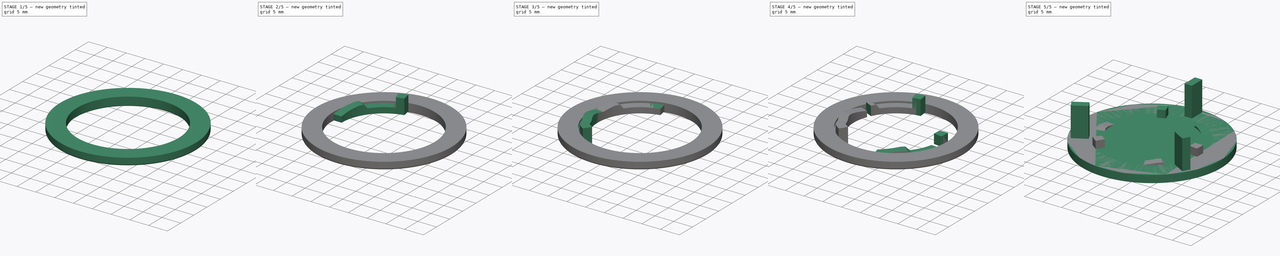
[diagram: build sequence overview — one tinted view per stage of 5, left to right]
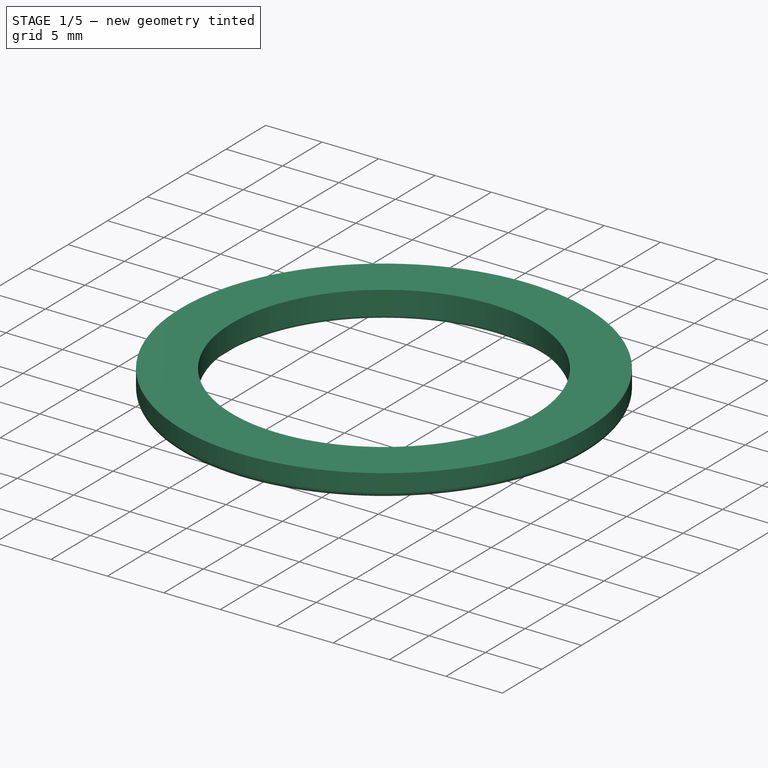
[diagram: stage 1 of 5 — iso view after this stage's code; geometry added in this stage tinted green]
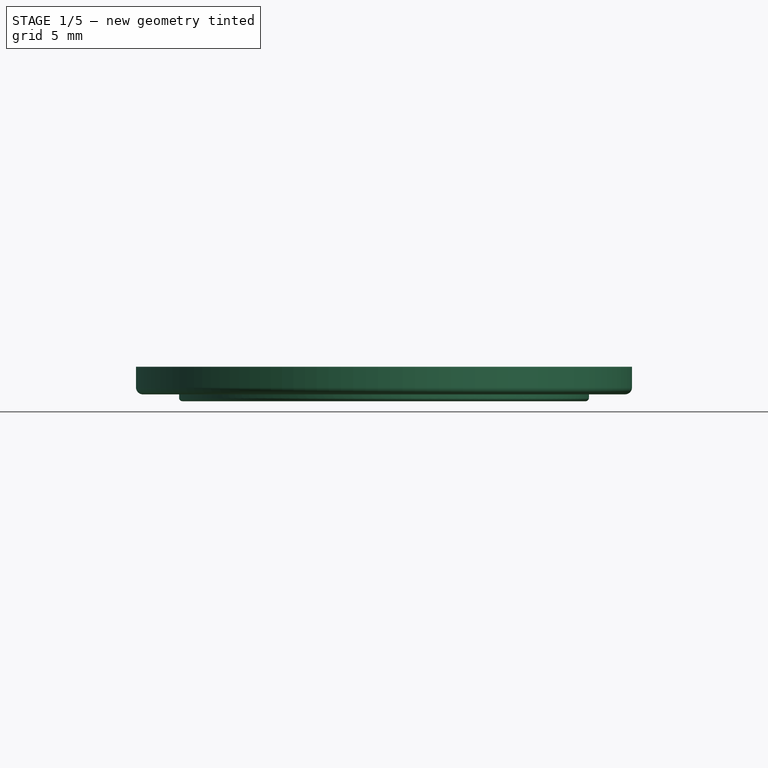
[diagram: stage 1 of 5 — front view after this stage's code; geometry added in this stage tinted green]
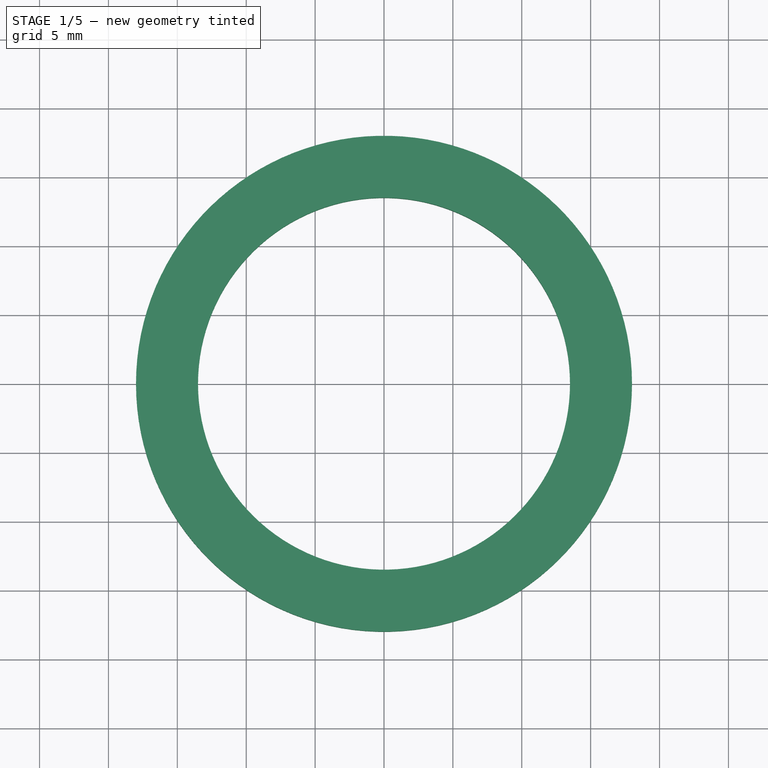
[diagram: stage 1 of 5 — top view after this stage's code; geometry added in this stage tinted green]
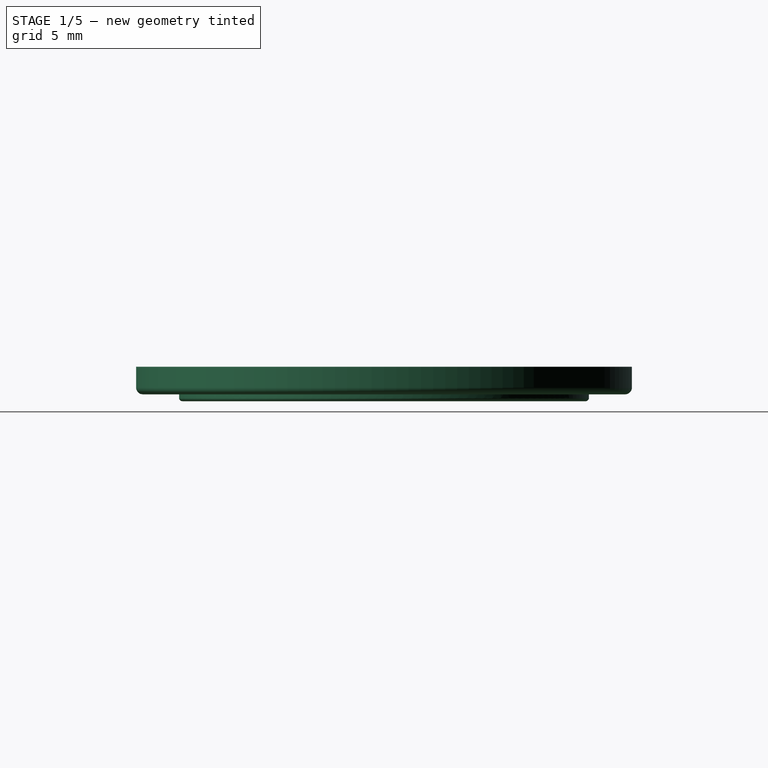
[diagram: stage 1 of 5 — right view after this stage's code; geometry added in this stage tinted green]
FCSTD DOCUMENT  (FreeCAD 0.18R4 (GitTag))
Label: BayonetBaseFemaleV6
License: All rights reserved
LicenseURL: http://en.wikipedia.org/wiki/All_rights_reserved
objects: Sketcher::SketchObject×40, Part::Sweep×16, Part::MultiFuse×6, Part::Cylinder×3, Part::Mirroring×3, Part::Fillet×3, PartDesign::Body×1, Part::Cut×1, Part::Box×1, Part::FeaturePython×1
note: 75 computed .brp shape members not serialized (recipe doc carries the construction recipe); baked Part::Feature solids carry a one-line shape summary decoded from their .brp

FEATURE [Part::Cylinder] Cylinder001
  Angle = 360
  AttacherType = Attacher::AttachEngine3D
  Height = 2
  Radius = 18
FEATURE [Part::Cylinder] Cylinder002
  Angle = 360
  AttacherType = Attacher::AttachEngine3D
  Height = 2
  Radius = 13.5
FEATURE [Part::Cut] Cut  label="Base"
  Base = -> Cylinder001
  Placement = pos=(0,0,2) rot=(1,0,0;3.14159rad)
  Tool = -> Cylinder002
FEATURE [Sketcher::SketchObject] Sketch015  label="GrooveProfile"
  Placement = pos=(0,0,0) rot=(1,0,0;1.5708rad)
  sketch-geometry (4):
    g0: LineSegment StartX=-14.875 StartY=-0.5 StartZ=0 EndX=-13.875 EndY=-0.5 EndZ=0
    g1: LineSegment StartX=-13.875 StartY=-0.5 StartZ=0 EndX=-13.875 EndY=0.5 EndZ=0
    g2: LineSegment StartX=-13.875 StartY=0.5 StartZ=0 EndX=-14.875 EndY=0.5 EndZ=0
    g3: LineSegment StartX=-14.875 StartY=0.5 StartZ=0 EndX=-14.875 EndY=-0.5 EndZ=0
  constraints (12):
    c: Coincident(g0,g1)
    c: Coincident(g1,g2)
    c: Coincident(g2,g3)
    c: Coincident(g3,g0)
    c: Horizontal(g0)
    c: Horizontal(g2)
    c: Vertical(g1)
    c: Vertical(g3)
    c: DistanceX(g0,g0) = 1
    c: Equal(g0,g1)
    c: DistanceY(g1,g-1) = -0.5
    c: DistanceX(g1,g-1) = 13.875
FEATURE [Sketcher::SketchObject] Sketch016  label="GroovePath"
  sketch-geometry (1):
    g0: Circle CenterX=0 CenterY=0 CenterZ=0 NormalX=0 NormalY=0 NormalZ=1 AngleXU=0 Radius=13.875
  constraints (2):
    c: Coincident(g0,g-1)
    c: Radius(g0) = 13.875
FEATURE [Part::Sweep] Sweep005  label="Groove"
  Frenet = false
  Sections = -> [Sketch015]
  Solid = true
  Spine = -> Sketch016 [Edge1]
  Transition = 1
FEATURE [Part::Fillet] Fillet
  Base = -> Cut
  Edges = 1 edges r=0.5: [Edge1]
FEATURE [Part::Fillet] Fillet001
  Base = -> Sweep005
  Edges = 1 edges r=0.25: [Edge1]
FEATURE [Part::Fillet] Fillet002
  Base = -> Fillet001
  Edges = 1 edges r=0.25: [Edge3]
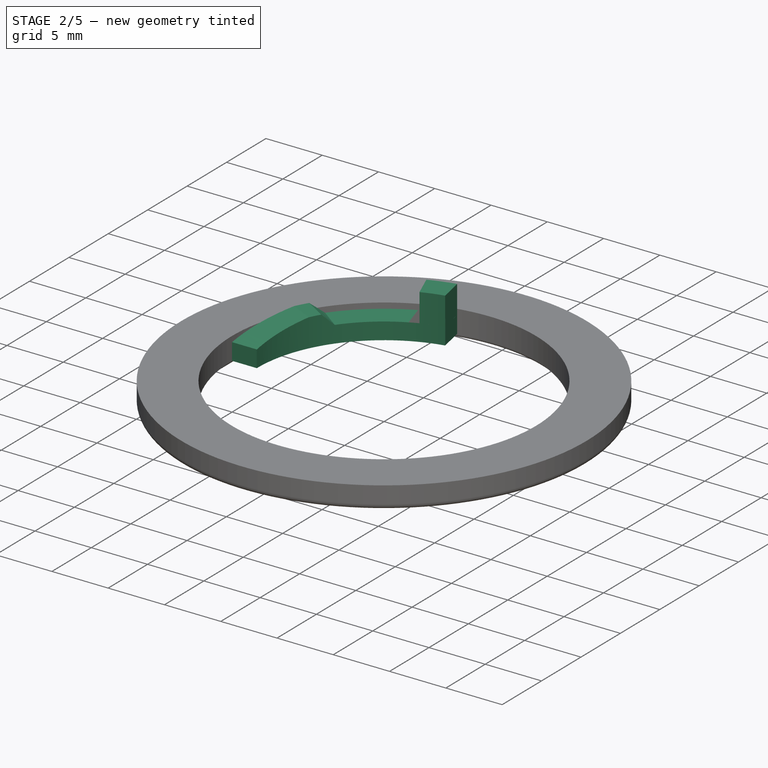
[diagram: stage 2 of 5 — iso view after this stage's code; geometry added in this stage tinted green]
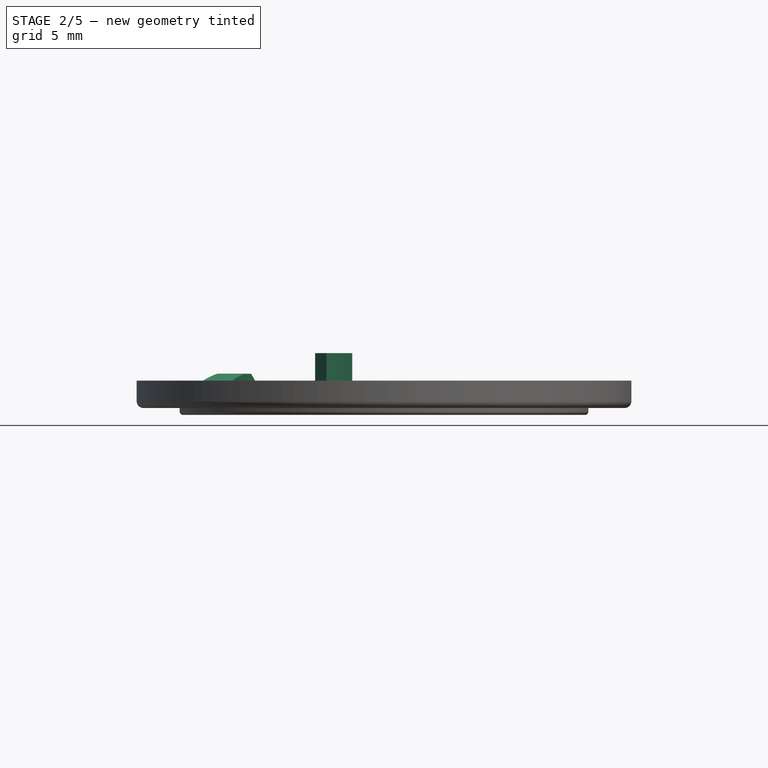
[diagram: stage 2 of 5 — front view after this stage's code; geometry added in this stage tinted green]
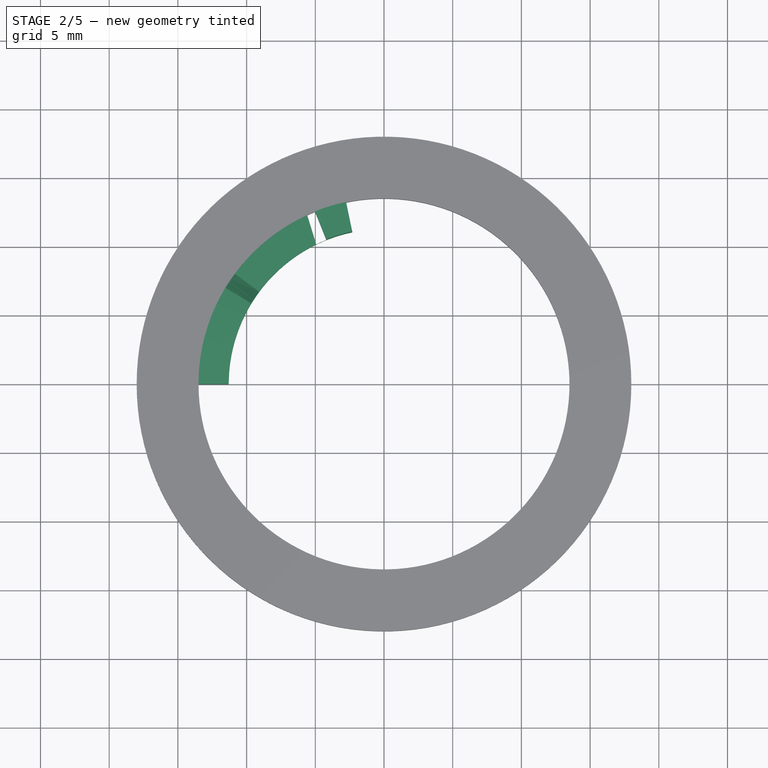
[diagram: stage 2 of 5 — top view after this stage's code; geometry added in this stage tinted green]
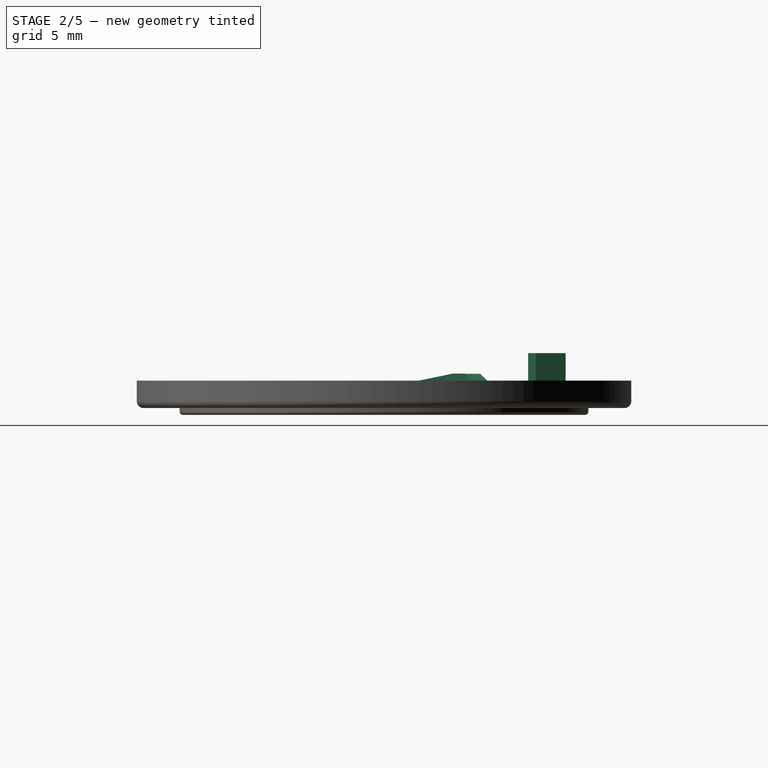
[diagram: stage 2 of 5 — right view after this stage's code; geometry added in this stage tinted green]
FEATURE [Sketcher::SketchObject] Sketch029  label="RampStart002"
  Placement = pos=(0,0,0) rot=(1,0,0;1.5708rad)
  sketch-geometry (4):
    g0: LineSegment StartX=-13.5 StartY=0 StartZ=0 EndX=-13.5 EndY=1.5 EndZ=0
    g1: LineSegment StartX=-13.5 StartY=1.5 StartZ=0 EndX=-11.3 EndY=1.5 EndZ=0
    g2: LineSegment StartX=-11.3 StartY=1.5 StartZ=0 EndX=-11.3 EndY=0 EndZ=0
    g3: LineSegment StartX=-11.3 StartY=0 StartZ=0 EndX=-13.5 EndY=0 EndZ=0
  constraints (12):
    c: Coincident(g0,g1)
    c: Coincident(g1,g2)
    c: Coincident(g2,g3)
    c: Coincident(g3,g0)
    c: Parallel(g0,g2)
    c: Parallel(g1,g3)
    c: Horizontal(g3)
    c: Vertical(g2)
    c: DistanceY(g-1,g2) = 0
    c: DistanceX(g2,g-1) = 11.3
    c: DistanceX(g0,g-1) = 13.5
    c: DistanceY(g0,g0) = 1.5
FEATURE [Sketcher::SketchObject] Sketch030  label="RampEnd002"
  Placement = pos=(0,0,0) rot=(0.950615,-0.219467,-0.219467;1.62142rad)
  sketch-geometry (4):
    g0: LineSegment StartX=-13.5 StartY=0 StartZ=0 EndX=-13.5 EndY=2.5 EndZ=0
    g1: LineSegment StartX=-13.5 StartY=2.5 StartZ=0 EndX=-11.3 EndY=2.5 EndZ=0
    g2: LineSegment StartX=-11.3 StartY=2.5 StartZ=0 EndX=-11.3 EndY=0 EndZ=0
    g3: LineSegment StartX=-11.3 StartY=0 StartZ=0 EndX=-13.5 EndY=0 EndZ=0
  constraints (12):
    c: Coincident(g0,g1)
    c: Coincident(g1,g2)
    c: Coincident(g2,g3)
    c: Coincident(g3,g0)
    c: Parallel(g0,g2)
    c: Parallel(g1,g3)
    c: Horizontal(g3)
    c: Vertical(g2)
    c: DistanceY(g-1,g2) = 0
    c: DistanceX(g2,g-1) = 11.3
    c: DistanceX(g0,g-1) = 13.5
    c: DistanceY(g0,g0) = 2.5
FEATURE [Sketcher::SketchObject] Sketch031  label="LockFlatEnd002"
  Placement = pos=(0,0,0) rot=(0.656406,-0.533447,-0.533447;1.97986rad)
  sketch-geometry (4):
    g0: LineSegment StartX=-13.5 StartY=0 StartZ=0 EndX=-13.5 EndY=1.5 EndZ=0
    g1: LineSegment StartX=-13.5 StartY=1.5 StartZ=0 EndX=-11.3 EndY=1.5 EndZ=0
    g2: LineSegment StartX=-11.3 StartY=1.5 StartZ=0 EndX=-11.3 EndY=0 EndZ=0
    g3: LineSegment StartX=-11.3 StartY=0 StartZ=0 EndX=-13.5 EndY=0 EndZ=0
  constraints (12):
    c: Coincident(g0,g1)
    c: Coincident(g1,g2)
    c: Coincident(g2,g3)
    c: Coincident(g3,g0)
    c: Parallel(g0,g2)
    c: Parallel(g1,g3)
    c: Horizontal(g3)
    c: Vertical(g2)
    c: DistanceY(g-1,g2) = 0
    c: DistanceX(g2,g-1) = 11.3
    c: DistanceX(g0,g-1) = 13.5
    c: DistanceY(g0,g0) = 1.5
FEATURE [Sketcher::SketchObject] Sketch032  label="RampFlat002"
  Placement = pos=(0,0,0) rot=(0.930118,-0.259693,-0.259693;1.64318rad)
  sketch-geometry (4):
    g0: LineSegment StartX=-13.5 StartY=0 StartZ=0 EndX=-13.5 EndY=2.5 EndZ=0
    g1: LineSegment StartX=-13.5 StartY=2.5 StartZ=0 EndX=-11.3 EndY=2.5 EndZ=0
    g2: LineSegment StartX=-11.3 StartY=2.5 StartZ=0 EndX=-11.3 EndY=0 EndZ=0
    g3: LineSegment StartX=-11.3 StartY=0 StartZ=0 EndX=-13.5 EndY=0 EndZ=0
  constraints (12):
    c: Coincident(g0,g1)
    c: Coincident(g1,g2)
    c: Coincident(g2,g3)
    c: Coincident(g3,g0)
    c: Parallel(g0,g2)
    c: Parallel(g1,g3)
    c: Horizontal(g3)
    c: Vertical(g2)
    c: DistanceY(g-1,g2) = 0
    c: DistanceX(g2,g-1) = 11.3
    c: DistanceX(g0,g-1) = 13.5
    c: DistanceY(g0,g0) = 2.5
FEATURE [Sketcher::SketchObject] Sketch033  label="Path009"
  sketch-geometry (1):
    g0: ArcOfCircle CenterX=0 CenterY=0 CenterZ=0 NormalX=0 NormalY=0 NormalZ=1 AngleXU=0 Radius=11.3 StartAngle=2.50468 EndAngle=2.59704
  constraints (2):
    c: Radius(g0) = 11.3
    c: Coincident(g0,g-1)
FEATURE [Sketcher::SketchObject] Sketch034  label="Path010"
  sketch-geometry (2):
    g0: ArcOfCircle CenterX=0 CenterY=0 CenterZ=0 NormalX=0 NormalY=0 NormalZ=1 AngleXU=0 Radius=11.3 StartAngle=2.68754 EndAngle=3.14132
    g1: GeomPoint X=-10.1564 Y=4.95359 Z=0
  constraints (3):
    c: Radius(g0) = 11.3
    c: Coincident(g-1,g0)
    c: Angle(g0) = 0.453786
FEATURE [Sketcher::SketchObject] Sketch035  label="LockFlat002"
  Placement = pos=(0,0,0) rot=(0.906297,-0.298852,-0.298852;1.66903rad)
  sketch-geometry (4):
    g0: LineSegment StartX=-13.5 StartY=0 StartZ=0 EndX=-13.5 EndY=1.5 EndZ=0
    g1: LineSegment StartX=-13.5 StartY=1.5 StartZ=0 EndX=-11.3 EndY=1.5 EndZ=0
    g2: LineSegment StartX=-11.3 StartY=1.5 StartZ=0 EndX=-11.3 EndY=0 EndZ=0
    g3: LineSegment StartX=-11.3 StartY=0 StartZ=0 EndX=-13.5 EndY=0 EndZ=0
  constraints (12):
    c: Coincident(g0,g1)
    c: Coincident(g1,g2)
    c: Coincident(g2,g3)
    c: Coincident(g3,g0)
    c: Parallel(g0,g2)
    c: Parallel(g1,g3)
    c: Horizontal(g3)
    c: Vertical(g2)
    c: DistanceY(g-1,g2) = 0
    c: DistanceX(g2,g-1) = 11.3
    c: DistanceX(g0,g-1) = 13.5
    c: DistanceY(g0,g0) = 1.5
FEATURE [Sketcher::SketchObject] Sketch036  label="Path011"
  sketch-geometry (1):
    g0: ArcOfCircle CenterX=0 CenterY=0 CenterZ=0 NormalX=0 NormalY=0 NormalZ=1 AngleXU=0 Radius=11.3 StartAngle=2.59707 EndAngle=2.68754
  constraints (2):
    c: Radius(g0) = 11.3
    c: Coincident(g0,g-1)
FEATURE [Part::Sweep] Sweep012
  Frenet = false
  Sections = -> [Sketch030,Sketch032]
  Solid = true
  Spine = -> Sketch036 [Edge1]
  Transition = 1
FEATURE [Sketcher::SketchObject] Sketch037  label="Path012"
  sketch-geometry (1):
    g0: ArcOfCircle CenterX=0 CenterY=0 CenterZ=0 NormalX=0 NormalY=0 NormalZ=1 AngleXU=0 Radius=11.3 StartAngle=1.77654 EndAngle=2.50452
  constraints (2):
    c: Radius(g0) = 11.3
    c: Coincident(g0,g-1)
FEATURE [Part::Sweep] Sweep011
  Frenet = false
  Sections = -> [Sketch035,Sketch031]
  Solid = true
  Spine = -> Sketch037 [Edge1]
  Transition = 1
FEATURE [Sketcher::SketchObject] Sketch038  label="EndstopEnd002"
  Placement = pos=(0,0,0) rot=(0.656406,-0.533447,-0.533447;1.97986rad)
  sketch-geometry (4):
    g0: LineSegment StartX=-13.5 StartY=0 StartZ=0 EndX=-13.5 EndY=4 EndZ=0
    g1: LineSegment StartX=-13.5 StartY=4 StartZ=0 EndX=-11.3 EndY=4 EndZ=0
    g2: LineSegment StartX=-11.3 StartY=4 StartZ=0 EndX=-11.3 EndY=0 EndZ=0
    g3: LineSegment StartX=-11.3 StartY=0 StartZ=0 EndX=-13.5 EndY=0 EndZ=0
  constraints (12):
    c: Coincident(g0,g1)
    c: Coincident(g1,g2)
    c: Coincident(g2,g3)
    c: Coincident(g3,g0)
    c: Parallel(g0,g2)
    c: Parallel(g1,g3)
    c: Horizontal(g3)
    c: Vertical(g2)
    c: DistanceY(g-1,g2) = 0
    c: DistanceX(g2,g-1) = 11.3
    c: DistanceX(g0,g-1) = 13.5
    c: DistanceY(g0,g0) = 4
FEATURE [Part::Sweep] Sweep013
  Frenet = false
  Sections = -> [Sketch032,Sketch035]
  Solid = true
  Spine = -> Sketch033 [Edge1]
  Transition = 1
FEATURE [Sketcher::SketchObject] Sketch039  label="EndstopPath002"
  sketch-geometry (1):
    g0: ArcOfCircle CenterX=0 CenterY=0 CenterZ=0 NormalX=0 NormalY=0 NormalZ=1 AngleXU=0 Radius=11.3 StartAngle=1.77684 EndAngle=1.95126
  constraints (2):
    c: Radius(g0) = 11.3
    c: Coincident(g-1,g0)
FEATURE [Sketcher::SketchObject] Sketch040  label="EndstopStart002"
  Placement = pos=(0,0,0) rot=(0.722291,-0.489028,-0.489028;1.89053rad)
  sketch-geometry (4):
    g0: LineSegment StartX=-13.5 StartY=0 StartZ=0 EndX=-13.5 EndY=4 EndZ=0
    g1: LineSegment StartX=-13.5 StartY=4 StartZ=0 EndX=-11.3 EndY=4 EndZ=0
    g2: LineSegment StartX=-11.3 StartY=4 StartZ=0 EndX=-11.3 EndY=0 EndZ=0
    g3: LineSegment StartX=-11.3 StartY=0 StartZ=0 EndX=-13.5 EndY=0 EndZ=0
  constraints (12):
    c: Coincident(g0,g1)
    c: Coincident(g1,g2)
    c: Coincident(g2,g3)
    c: Coincident(g3,g0)
    c: Parallel(g0,g2)
    c: Parallel(g1,g3)
    c: Horizontal(g3)
    c: Vertical(g2)
    c: DistanceY(g-1,g2) = 0
    c: DistanceX(g2,g-1) = 11.3
    c: DistanceX(g0,g-1) = 13.5
    c: DistanceY(g0,g0) = 4
FEATURE [Part::Sweep] Sweep014  label="EndStop002"
  Frenet = false
  Sections = -> [Sketch040,Sketch038]
  Solid = true
  Spine = -> Sketch039 [Edge1]
  Transition = 1
FEATURE [Part::Sweep] Sweep015
  Frenet = false
  Sections = -> [Sketch029,Sketch030]
  Solid = true
  Spine = -> Sketch034 [Edge1]
  Transition = 1
FEATURE [Part::MultiFuse] Fusion005  label="Ramp002"
  Shapes = -> [Sweep015,Sweep012,Sweep013,Sweep011]
FEATURE [Part::MultiFuse] Fusion004  label="RampWithEndstopShort001"
  Shapes = -> [Fusion005,Sweep014]
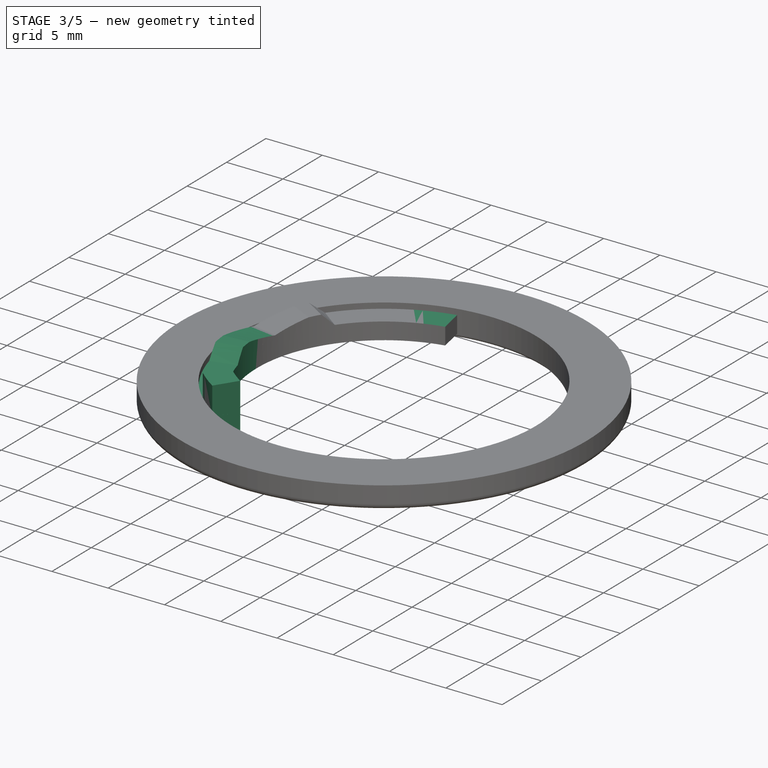
[diagram: stage 3 of 5 — iso view after this stage's code; geometry added in this stage tinted green]
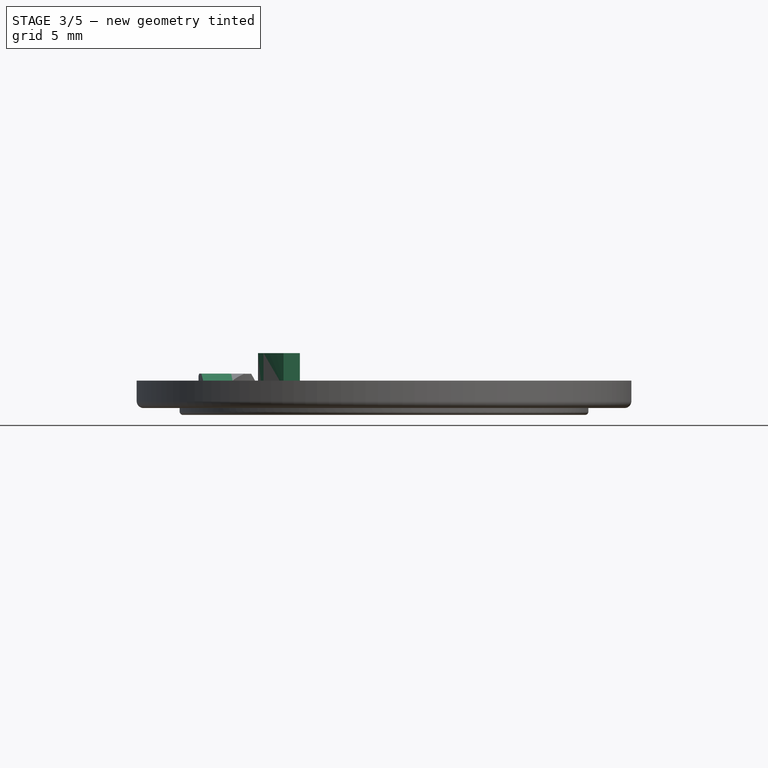
[diagram: stage 3 of 5 — front view after this stage's code; geometry added in this stage tinted green]
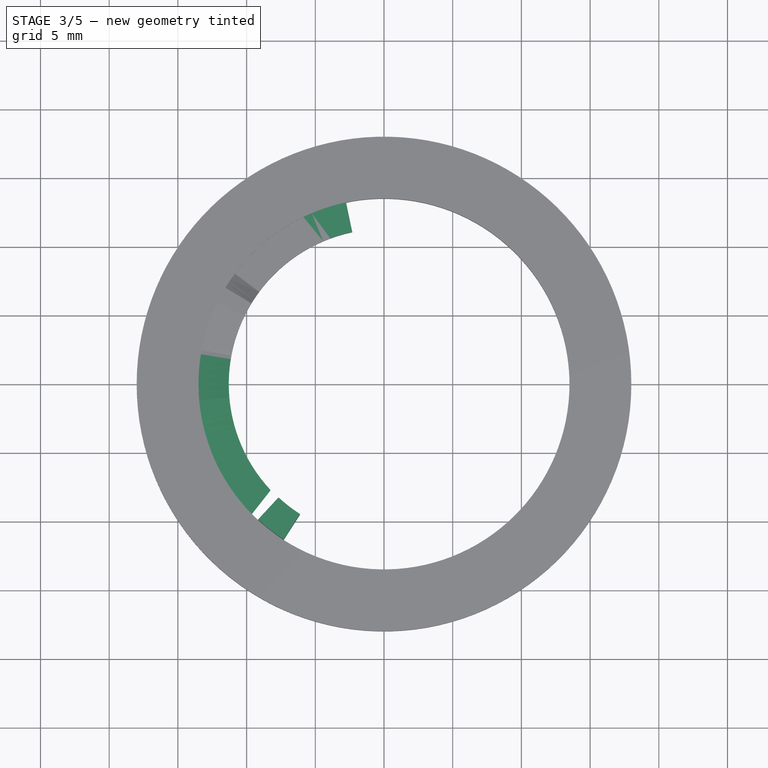
[diagram: stage 3 of 5 — top view after this stage's code; geometry added in this stage tinted green]
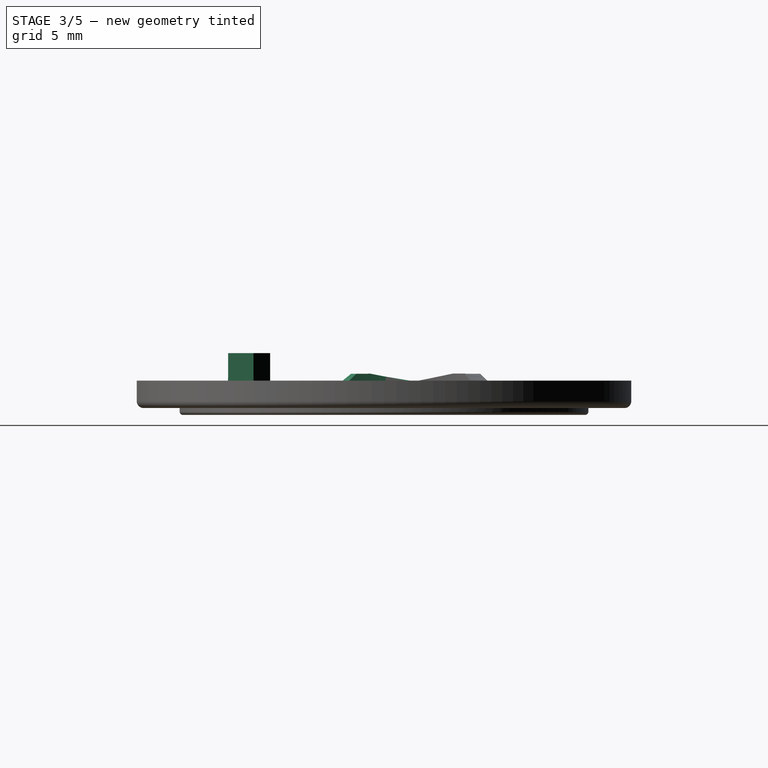
[diagram: stage 3 of 5 — right view after this stage's code; geometry added in this stage tinted green]
FEATURE [Sketcher::SketchObject] Sketch017  label="RampStart001"
  Placement = pos=(0,0,0) rot=(1,0,0;1.5708rad)
  sketch-geometry (4):
    g0: LineSegment StartX=-13.5 StartY=0 StartZ=0 EndX=-13.5 EndY=1.5 EndZ=0
    g1: LineSegment StartX=-13.5 StartY=1.5 StartZ=0 EndX=-11.3 EndY=1.5 EndZ=0
    g2: LineSegment StartX=-11.3 StartY=1.5 StartZ=0 EndX=-11.3 EndY=0 EndZ=0
    g3: LineSegment StartX=-11.3 StartY=0 StartZ=0 EndX=-13.5 EndY=0 EndZ=0
  constraints (12):
    c: Coincident(g0,g1)
    c: Coincident(g1,g2)
    c: Coincident(g2,g3)
    c: Coincident(g3,g0)
    c: Parallel(g0,g2)
    c: Parallel(g1,g3)
    c: Horizontal(g3)
    c: Vertical(g2)
    c: DistanceY(g-1,g2) = 0
    c: DistanceX(g2,g-1) = 11.3
    c: DistanceX(g0,g-1) = 13.5
    c: DistanceY(g0,g0) = 1.5
FEATURE [Sketcher::SketchObject] Sketch018  label="RampEnd001"
  Placement = pos=(0,0,0) rot=(0.950615,-0.219467,-0.219467;1.62142rad)
  sketch-geometry (4):
    g0: LineSegment StartX=-13.5 StartY=0 StartZ=0 EndX=-13.5 EndY=2.5 EndZ=0
    g1: LineSegment StartX=-13.5 StartY=2.5 StartZ=0 EndX=-11.3 EndY=2.5 EndZ=0
    g2: LineSegment StartX=-11.3 StartY=2.5 StartZ=0 EndX=-11.3 EndY=0 EndZ=0
    g3: LineSegment StartX=-11.3 StartY=0 StartZ=0 EndX=-13.5 EndY=0 EndZ=0
  constraints (12):
    c: Coincident(g0,g1)
    c: Coincident(g1,g2)
    c: Coincident(g2,g3)
    c: Coincident(g3,g0)
    c: Parallel(g0,g2)
    c: Parallel(g1,g3)
    c: Horizontal(g3)
    c: Vertical(g2)
    c: DistanceY(g-1,g2) = 0
    c: DistanceX(g2,g-1) = 11.3
    c: DistanceX(g0,g-1) = 13.5
    c: DistanceY(g0,g0) = 2.5
FEATURE [Sketcher::SketchObject] Sketch019  label="RampFlat001"
  Placement = pos=(0,0,0) rot=(0.930118,-0.259693,-0.259693;1.64318rad)
  sketch-geometry (4):
    g0: LineSegment StartX=-13.5 StartY=0 StartZ=0 EndX=-13.5 EndY=2.5 EndZ=0
    g1: LineSegment StartX=-13.5 StartY=2.5 StartZ=0 EndX=-11.3 EndY=2.5 EndZ=0
    g2: LineSegment StartX=-11.3 StartY=2.5 StartZ=0 EndX=-11.3 EndY=0 EndZ=0
    g3: LineSegment StartX=-11.3 StartY=0 StartZ=0 EndX=-13.5 EndY=0 EndZ=0
  constraints (12):
    c: Coincident(g0,g1)
    c: Coincident(g1,g2)
    c: Coincident(g2,g3)
    c: Coincident(g3,g0)
    c: Parallel(g0,g2)
    c: Parallel(g1,g3)
    c: Horizontal(g3)
    c: Vertical(g2)
    c: DistanceY(g-1,g2) = 0
    c: DistanceX(g2,g-1) = 11.3
    c: DistanceX(g0,g-1) = 13.5
    c: DistanceY(g0,g0) = 2.5
FEATURE [Sketcher::SketchObject] Sketch020  label="LockFlat001"
  Placement = pos=(0,0,0) rot=(0.906297,-0.298852,-0.298852;1.66903rad)
  sketch-geometry (4):
    g0: LineSegment StartX=-13.5 StartY=0 StartZ=0 EndX=-13.5 EndY=1.5 EndZ=0
    g1: LineSegment StartX=-13.5 StartY=1.5 StartZ=0 EndX=-11.3 EndY=1.5 EndZ=0
    g2: LineSegment StartX=-11.3 StartY=1.5 StartZ=0 EndX=-11.3 EndY=0 EndZ=0
    g3: LineSegment StartX=-11.3 StartY=0 StartZ=0 EndX=-13.5 EndY=0 EndZ=0
  constraints (12):
    c: Coincident(g0,g1)
    c: Coincident(g1,g2)
    c: Coincident(g2,g3)
    c: Coincident(g3,g0)
    c: Parallel(g0,g2)
    c: Parallel(g1,g3)
    c: Horizontal(g3)
    c: Vertical(g2)
    c: DistanceY(g-1,g2) = 0
    c: DistanceX(g2,g-1) = 11.3
    c: DistanceX(g0,g-1) = 13.5
    c: DistanceY(g0,g0) = 1.5
FEATURE [Sketcher::SketchObject] Sketch021  label="LockFlatEnd001"
  Placement = pos=(0,0,0) rot=(0.656406,-0.533447,-0.533447;1.97986rad)
  sketch-geometry (4):
    g0: LineSegment StartX=-13.5 StartY=0 StartZ=0 EndX=-13.5 EndY=1.5 EndZ=0
    g1: LineSegment StartX=-13.5 StartY=1.5 StartZ=0 EndX=-11.3 EndY=1.5 EndZ=0
    g2: LineSegment StartX=-11.3 StartY=1.5 StartZ=0 EndX=-11.3 EndY=0 EndZ=0
    g3: LineSegment StartX=-11.3 StartY=0 StartZ=0 EndX=-13.5 EndY=0 EndZ=0
  constraints (12):
    c: Coincident(g0,g1)
    c: Coincident(g1,g2)
    c: Coincident(g2,g3)
    c: Coincident(g3,g0)
    c: Parallel(g0,g2)
    c: Parallel(g1,g3)
    c: Horizontal(g3)
    c: Vertical(g2)
    c: DistanceY(g-1,g2) = 0
    c: DistanceX(g2,g-1) = 11.3
    c: DistanceX(g0,g-1) = 13.5
    c: DistanceY(g0,g0) = 1.5
FEATURE [Sketcher::SketchObject] Sketch022  label="Path005"
  sketch-geometry (2):
    g0: ArcOfCircle CenterX=0 CenterY=0 CenterZ=0 NormalX=0 NormalY=0 NormalZ=1 AngleXU=0 Radius=11.3 StartAngle=2.68754 EndAngle=3.14132
    g1: GeomPoint X=-10.1564 Y=4.95359 Z=0
  constraints (3):
    c: Radius(g0) = 11.3
    c: Coincident(g-1,g0)
    c: Angle(g0) = 0.453786
FEATURE [Sketcher::SketchObject] Sketch023  label="Path006"
  sketch-geometry (1):
    g0: ArcOfCircle CenterX=0 CenterY=0 CenterZ=0 NormalX=0 NormalY=0 NormalZ=1 AngleXU=0 Radius=11.3 StartAngle=2.59707 EndAngle=2.68754
  constraints (2):
    c: Radius(g0) = 11.3
    c: Coincident(g0,g-1)
FEATURE [Sketcher::SketchObject] Sketch024  label="Path007"
  sketch-geometry (1):
    g0: ArcOfCircle CenterX=0 CenterY=0 CenterZ=0 NormalX=0 NormalY=0 NormalZ=1 AngleXU=0 Radius=11.3 StartAngle=2.50468 EndAngle=2.59704
  constraints (2):
    c: Radius(g0) = 11.3
    c: Coincident(g0,g-1)
FEATURE [Sketcher::SketchObject] Sketch025  label="Path008"
  sketch-geometry (1):
    g0: ArcOfCircle CenterX=0 CenterY=0 CenterZ=0 NormalX=0 NormalY=0 NormalZ=1 AngleXU=0 Radius=11.3 StartAngle=1.77654 EndAngle=2.50452
  constraints (2):
    c: Radius(g0) = 11.3
    c: Coincident(g0,g-1)
FEATURE [Part::Sweep] Sweep006
  Frenet = false
  Sections = -> [Sketch018,Sketch019]
  Solid = true
  Spine = -> Sketch023 [Edge1]
  Transition = 1
FEATURE [Part::Sweep] Sweep007
  Frenet = false
  Sections = -> [Sketch019,Sketch020]
  Solid = true
  Spine = -> Sketch024 [Edge1]
  Transition = 1
FEATURE [Part::Sweep] Sweep008
  Frenet = false
  Sections = -> [Sketch020,Sketch021]
  Solid = true
  Spine = -> Sketch025 [Edge1]
  Transition = 1
FEATURE [Part::Sweep] Sweep010
  Frenet = false
  Sections = -> [Sketch017,Sketch018]
  Solid = true
  Spine = -> Sketch022 [Edge1]
  Transition = 1
FEATURE [Part::MultiFuse] Fusion003  label="Ramp001"
  Shapes = -> [Sweep010,Sweep006,Sweep007,Sweep008]
FEATURE [Part::Mirroring] Part__Mirroring002  label="RampWithEndstopShort 2"
  Base = (0,0,0)
  Normal = (0,1,0)
  Placement = pos=(0,0,0) rot=(0,0,-1;0.366519rad)
  Source = -> Fusion004
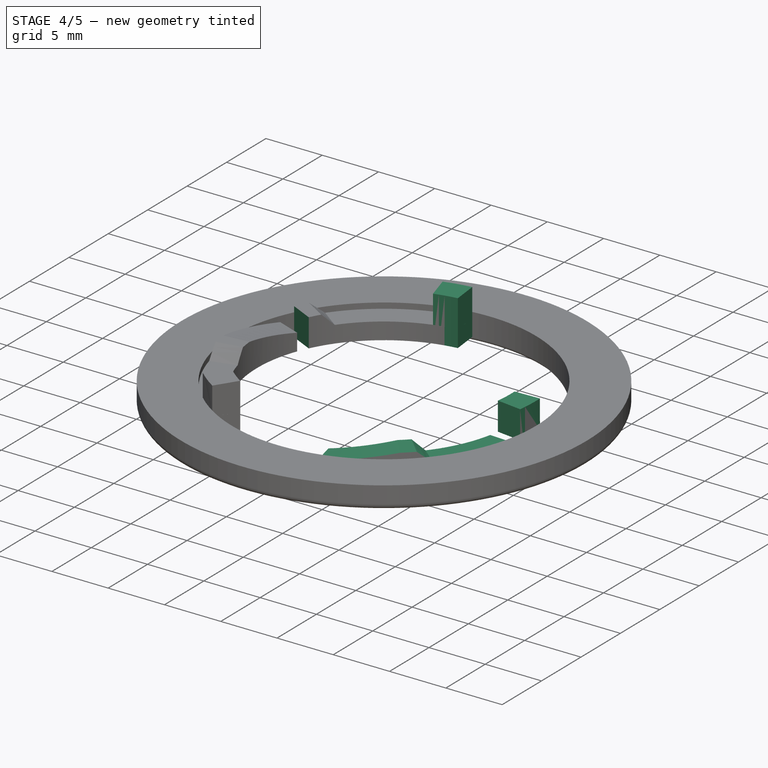
[diagram: stage 4 of 5 — iso view after this stage's code; geometry added in this stage tinted green]
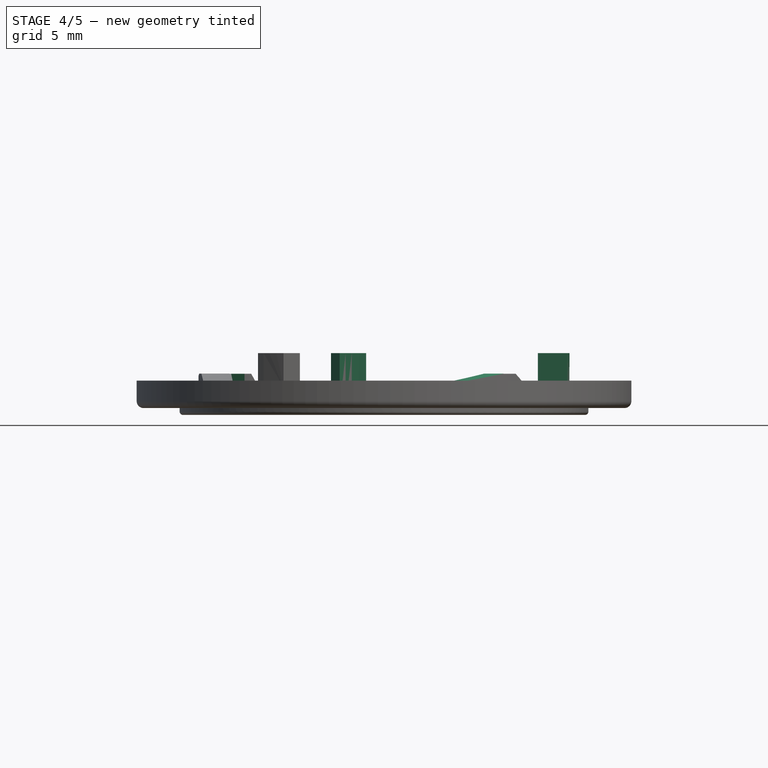
[diagram: stage 4 of 5 — front view after this stage's code; geometry added in this stage tinted green]
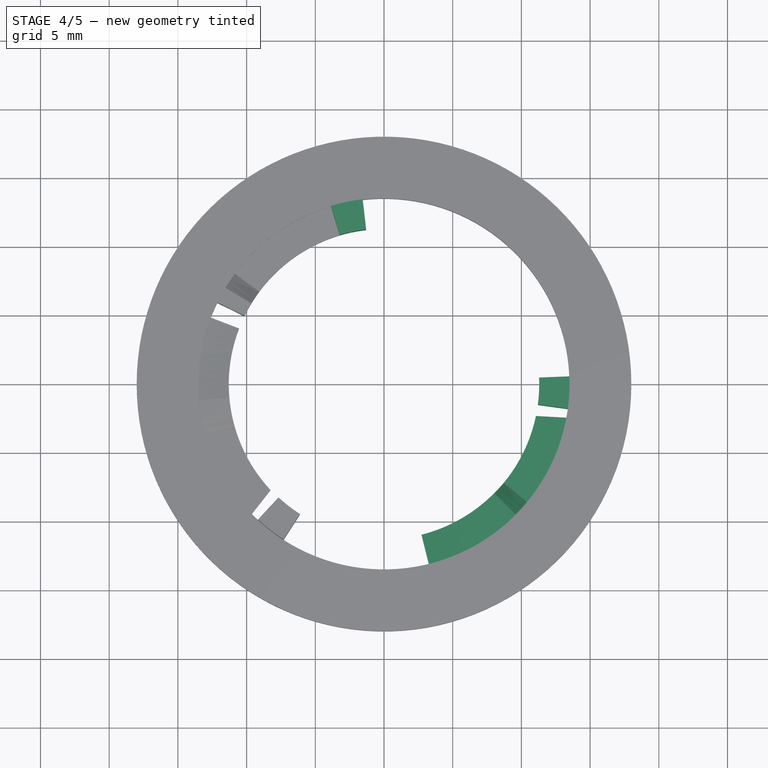
[diagram: stage 4 of 5 — top view after this stage's code; geometry added in this stage tinted green]
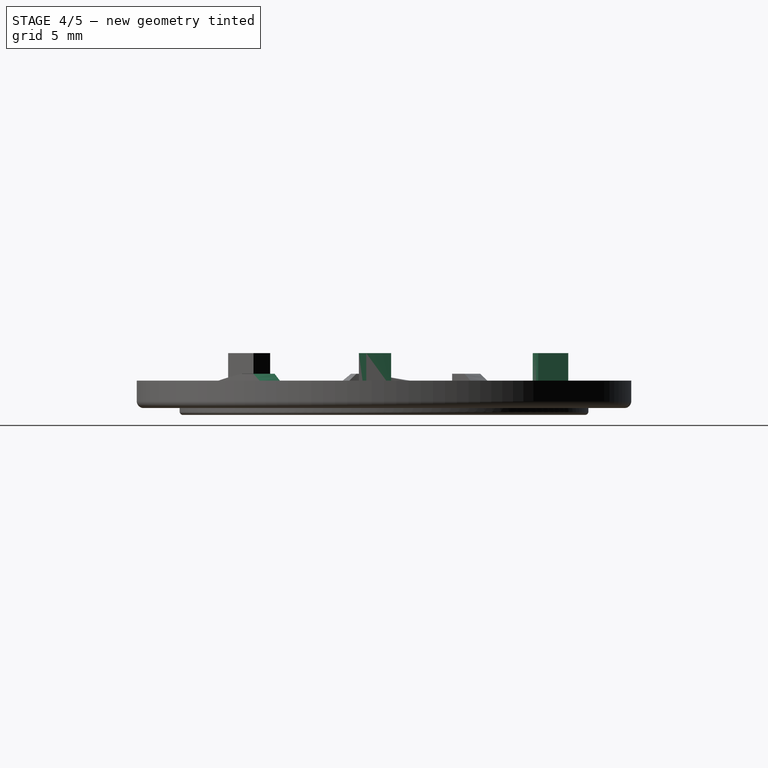
[diagram: stage 4 of 5 — right view after this stage's code; geometry added in this stage tinted green]
FEATURE [Sketcher::SketchObject] Sketch008  label="Path2"
  sketch-geometry (1):
    g0: ArcOfCircle CenterX=0 CenterY=0 CenterZ=0 NormalX=0 NormalY=0 NormalZ=1 AngleXU=0 Radius=11.3 StartAngle=2.59707 EndAngle=2.68754
  constraints (2):
    c: Radius(g0) = 11.3
    c: Coincident(g0,g-1)
FEATURE [Sketcher::SketchObject] Sketch009  label="Path3"
  sketch-geometry (1):
    g0: ArcOfCircle CenterX=0 CenterY=0 CenterZ=0 NormalX=0 NormalY=0 NormalZ=1 AngleXU=0 Radius=11.3 StartAngle=2.50468 EndAngle=2.59704
  constraints (2):
    c: Radius(g0) = 11.3
    c: Coincident(g0,g-1)
FEATURE [Sketcher::SketchObject] Sketch010  label="Path4"
  sketch-geometry (1):
    g0: ArcOfCircle CenterX=0 CenterY=0 CenterZ=0 NormalX=0 NormalY=0 NormalZ=1 AngleXU=0 Radius=11.3 StartAngle=1.68594 EndAngle=2.50452
  constraints (2):
    c: Radius(g0) = 11.3
    c: Coincident(g0,g-1)
FEATURE [Part::Sweep] Sweep001
  Frenet = false
  Sections = -> [Sketch002,Sketch003]
  Solid = true
  Spine = -> Sketch008 [Edge1]
  Transition = 1
FEATURE [Part::Sweep] Sweep002
  Frenet = false
  Sections = -> [Sketch003,Sketch004]
  Solid = true
  Spine = -> Sketch009 [Edge1]
  Transition = 1
FEATURE [Part::Sweep] Sweep003
  Frenet = false
  Sections = -> [Sketch004,Sketch005]
  Solid = true
  Spine = -> Sketch010 [Edge1]
  Transition = 1
FEATURE [Sketcher::SketchObject] Sketch011  label="EndstopEnd"
  Placement = pos=(0,0,0) rot=(0.621652,-0.553872,-0.553872;2.02922rad)
  sketch-geometry (4):
    g0: LineSegment StartX=-13.5 StartY=0 StartZ=0 EndX=-13.5 EndY=4 EndZ=0
    g1: LineSegment StartX=-13.5 StartY=4 StartZ=0 EndX=-11.3 EndY=4 EndZ=0
    g2: LineSegment StartX=-11.3 StartY=4 StartZ=0 EndX=-11.3 EndY=0 EndZ=0
    g3: LineSegment StartX=-11.3 StartY=0 StartZ=0 EndX=-13.5 EndY=0 EndZ=0
  constraints (12):
    c: Coincident(g0,g1)
    c: Coincident(g1,g2)
    c: Coincident(g2,g3)
    c: Coincident(g3,g0)
    c: Parallel(g0,g2)
    c: Parallel(g1,g3)
    c: Horizontal(g3)
    c: Vertical(g2)
    c: DistanceY(g-1,g2) = 0
    c: DistanceX(g2,g-1) = 11.3
    c: DistanceX(g0,g-1) = 13.5
    c: DistanceY(g0,g0) = 4
FEATURE [Sketcher::SketchObject] Sketch012  label="EndstopStart"
  Placement = pos=(0,0,0) rot=(0.688237,-0.512996,-0.512996;1.93602rad)
  sketch-geometry (4):
    g0: LineSegment StartX=-13.5 StartY=0 StartZ=0 EndX=-13.5 EndY=4 EndZ=0
    g1: LineSegment StartX=-13.5 StartY=4 StartZ=0 EndX=-11.3 EndY=4 EndZ=0
    g2: LineSegment StartX=-11.3 StartY=4 StartZ=0 EndX=-11.3 EndY=0 EndZ=0
    g3: LineSegment StartX=-11.3 StartY=0 StartZ=0 EndX=-13.5 EndY=0 EndZ=0
  constraints (12):
    c: Coincident(g0,g1)
    c: Coincident(g1,g2)
    c: Coincident(g2,g3)
    c: Coincident(g3,g0)
    c: Parallel(g0,g2)
    c: Parallel(g1,g3)
    c: Horizontal(g3)
    c: Vertical(g2)
    c: DistanceY(g-1,g2) = 0
    c: DistanceX(g2,g-1) = 11.3
    c: DistanceX(g0,g-1) = 13.5
    c: DistanceY(g0,g0) = 4
FEATURE [Sketcher::SketchObject] Sketch013  label="EndstopPath"
  sketch-geometry (1):
    g0: ArcOfCircle CenterX=0 CenterY=0 CenterZ=0 NormalX=0 NormalY=0 NormalZ=1 AngleXU=0 Radius=11.3 StartAngle=1.68607 EndAngle=1.86043
  constraints (2):
    c: Radius(g0) = 11.3
    c: Coincident(g-1,g0)
FEATURE [Part::Sweep] Sweep004  label="EndStop"
  Frenet = false
  Sections = -> [Sketch012,Sketch011]
  Solid = true
  Spine = -> Sketch013 [Edge1]
  Transition = 1
FEATURE [Sketcher::SketchObject] Sketch026  label="EndstopEnd001"
  Placement = pos=(0,0,0) rot=(0.656406,-0.533447,-0.533447;1.97986rad)
  sketch-geometry (4):
    g0: LineSegment StartX=-13.5 StartY=0 StartZ=0 EndX=-13.5 EndY=4 EndZ=0
    g1: LineSegment StartX=-13.5 StartY=4 StartZ=0 EndX=-11.3 EndY=4 EndZ=0
    g2: LineSegment StartX=-11.3 StartY=4 StartZ=0 EndX=-11.3 EndY=0 EndZ=0
    g3: LineSegment StartX=-11.3 StartY=0 StartZ=0 EndX=-13.5 EndY=0 EndZ=0
  constraints (12):
    c: Coincident(g0,g1)
    c: Coincident(g1,g2)
    c: Coincident(g2,g3)
    c: Coincident(g3,g0)
    c: Parallel(g0,g2)
    c: Parallel(g1,g3)
    c: Horizontal(g3)
    c: Vertical(g2)
    c: DistanceY(g-1,g2) = 0
    c: DistanceX(g2,g-1) = 11.3
    c: DistanceX(g0,g-1) = 13.5
    c: DistanceY(g0,g0) = 4
FEATURE [Sketcher::SketchObject] Sketch027  label="EndstopStart001"
  Placement = pos=(0,0,0) rot=(0.722291,-0.489028,-0.489028;1.89053rad)
  sketch-geometry (4):
    g0: LineSegment StartX=-13.5 StartY=0 StartZ=0 EndX=-13.5 EndY=4 EndZ=0
    g1: LineSegment StartX=-13.5 StartY=4 StartZ=0 EndX=-11.3 EndY=4 EndZ=0
    g2: LineSegment StartX=-11.3 StartY=4 StartZ=0 EndX=-11.3 EndY=0 EndZ=0
    g3: LineSegment StartX=-11.3 StartY=0 StartZ=0 EndX=-13.5 EndY=0 EndZ=0
  constraints (12):
    c: Coincident(g0,g1)
    c: Coincident(g1,g2)
    c: Coincident(g2,g3)
    c: Coincident(g3,g0)
    c: Parallel(g0,g2)
    c: Parallel(g1,g3)
    c: Horizontal(g3)
    c: Vertical(g2)
    c: DistanceY(g-1,g2) = 0
    c: DistanceX(g2,g-1) = 11.3
    c: DistanceX(g0,g-1) = 13.5
    c: DistanceY(g0,g0) = 4
FEATURE [Sketcher::SketchObject] Sketch028  label="EndstopPath001"
  sketch-geometry (1):
    g0: ArcOfCircle CenterX=0 CenterY=0 CenterZ=0 NormalX=0 NormalY=0 NormalZ=1 AngleXU=0 Radius=11.3 StartAngle=1.77684 EndAngle=1.95126
  constraints (2):
    c: Radius(g0) = 11.3
    c: Coincident(g-1,g0)
FEATURE [Part::Sweep] Sweep009  label="EndStop001"
  Frenet = false
  Sections = -> [Sketch027,Sketch026]
  Solid = true
  Spine = -> Sketch028 [Edge1]
  Transition = 1
FEATURE [Part::MultiFuse] Fusion002  label="RampWithEndstopShort"
  Shapes = -> [Fusion003,Sweep009]
FEATURE [Part::Mirroring] Part__Mirroring001  label="RampWithEndstopShort 1"
  Base = (0,0,0)
  Normal = (0,1,0)
  Placement = pos=(0,0,0) rot=(0,0,1;1.81514rad)
  Source = -> Fusion002
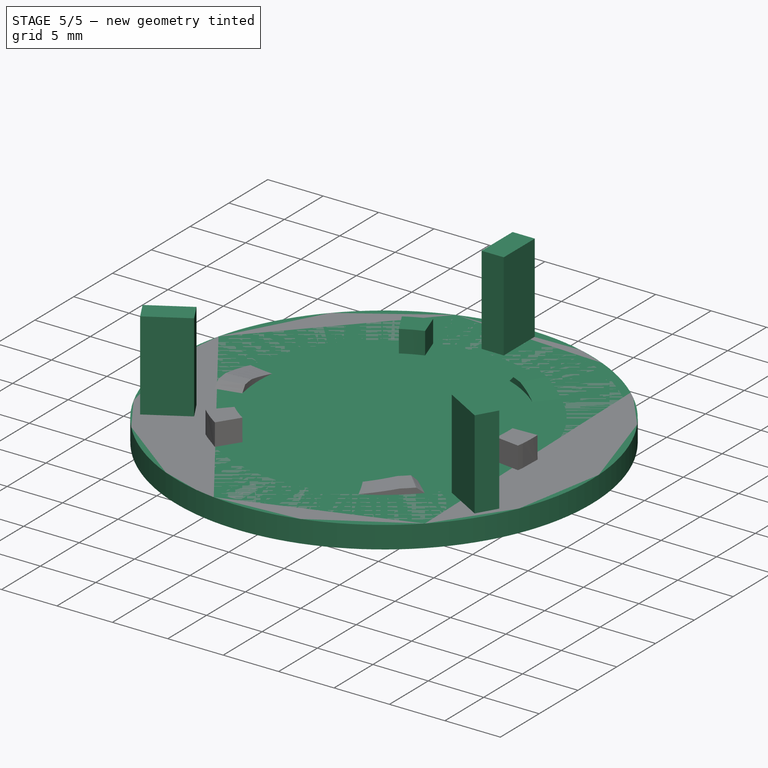
[diagram: stage 5 of 5 — iso view after this stage's code; geometry added in this stage tinted green]
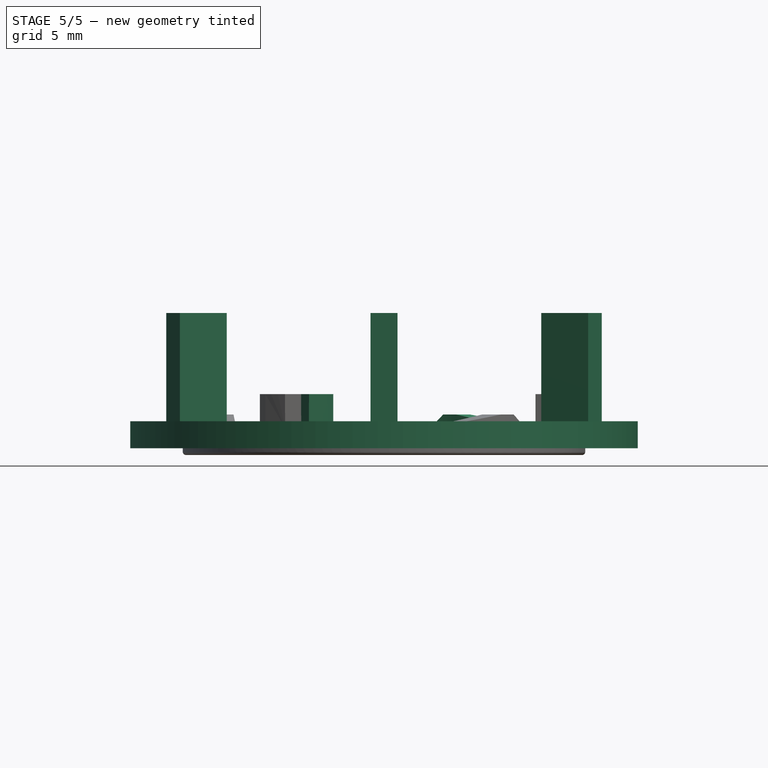
[diagram: stage 5 of 5 — front view after this stage's code; geometry added in this stage tinted green]
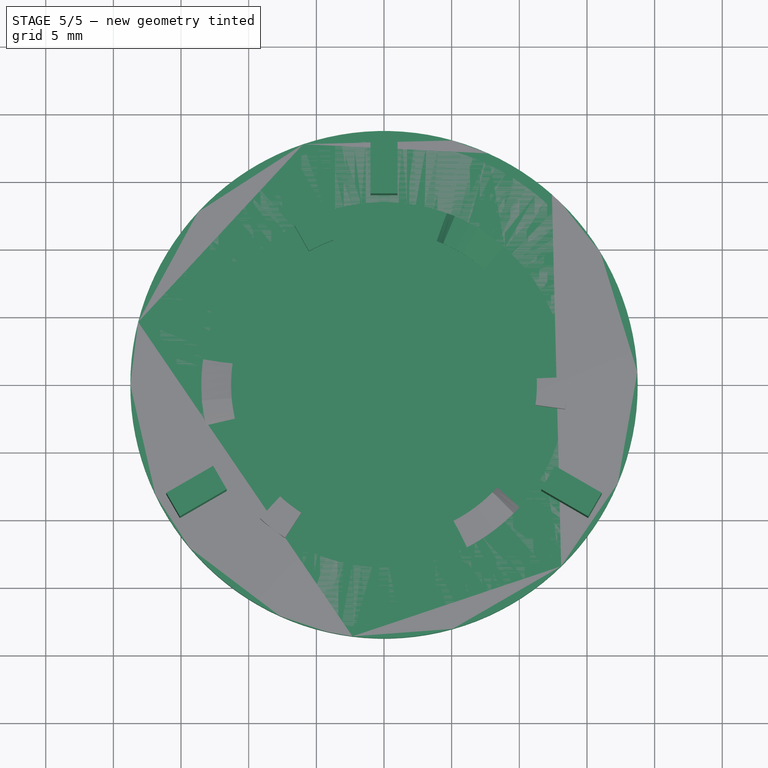
[diagram: stage 5 of 5 — top view after this stage's code; geometry added in this stage tinted green]
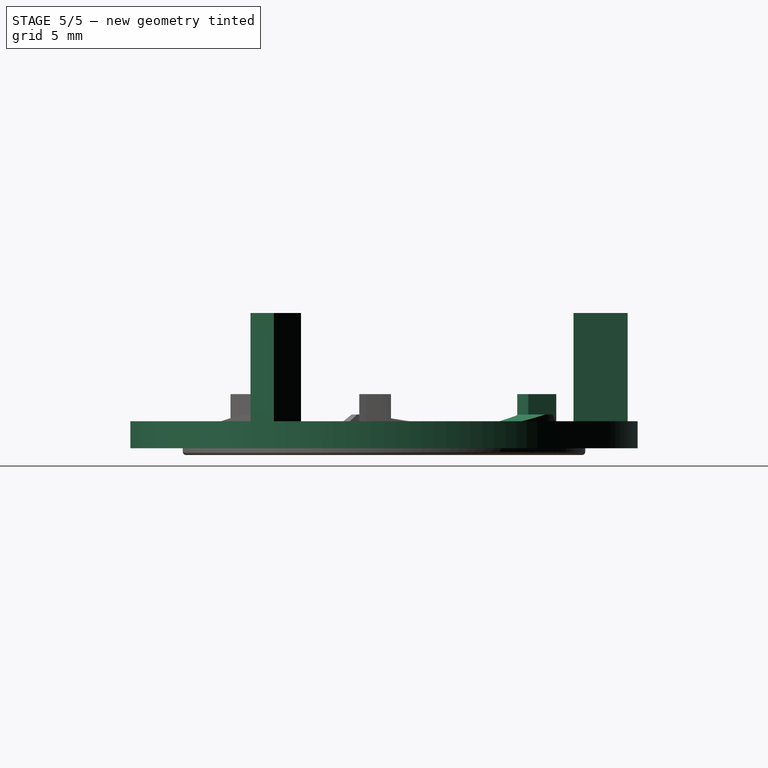
[diagram: stage 5 of 5 — right view after this stage's code; geometry added in this stage tinted green]
FEATURE [Part::Cylinder] Cylinder
  Angle = 360
  AttacherType = Attacher::AttachEngine3D
  Height = 2
  Radius = 18.75
FEATURE [Sketcher::SketchObject] Sketch  label="RampStart"
  Placement = pos=(0,0,0) rot=(1,0,0;1.5708rad)
  sketch-geometry (4):
    g0: LineSegment StartX=-13.5 StartY=0 StartZ=0 EndX=-13.5 EndY=1.5 EndZ=0
    g1: LineSegment StartX=-13.5 StartY=1.5 StartZ=0 EndX=-11.3 EndY=1.5 EndZ=0
    g2: LineSegment StartX=-11.3 StartY=1.5 StartZ=0 EndX=-11.3 EndY=0 EndZ=0
    g3: LineSegment StartX=-11.3 StartY=0 StartZ=0 EndX=-13.5 EndY=0 EndZ=0
  constraints (12):
    c: Coincident(g0,g1)
    c: Coincident(g1,g2)
    c: Coincident(g2,g3)
    c: Coincident(g3,g0)
    c: Parallel(g0,g2)
    c: Parallel(g1,g3)
    c: Horizontal(g3)
    c: Vertical(g2)
    c: DistanceY(g-1,g2) = 0
    c: DistanceX(g2,g-1) = 11.3
    c: DistanceX(g0,g-1) = 13.5
    c: DistanceY(g0,g0) = 1.5
FEATURE [Sketcher::SketchObject] Sketch001  label="InnerCircumference"
  Placement = pos=(0,0,0) rot=(1,0,0;3.14159rad)
  sketch-geometry (1):
    g0: Circle CenterX=0 CenterY=0 CenterZ=0 NormalX=0 NormalY=0 NormalZ=1 AngleXU=0 Radius=11
  constraints (1):
    c: Radius(g0) = 11
FEATURE [Sketcher::SketchObject] Sketch002  label="RampEnd"
  Placement = pos=(0,0,0) rot=(0.950615,-0.219467,-0.219467;1.62142rad)
  sketch-geometry (4):
    g0: LineSegment StartX=-13.5 StartY=0 StartZ=0 EndX=-13.5 EndY=2.5 EndZ=0
    g1: LineSegment StartX=-13.5 StartY=2.5 StartZ=0 EndX=-11.3 EndY=2.5 EndZ=0
    g2: LineSegment StartX=-11.3 StartY=2.5 StartZ=0 EndX=-11.3 EndY=0 EndZ=0
    g3: LineSegment StartX=-11.3 StartY=0 StartZ=0 EndX=-13.5 EndY=0 EndZ=0
  constraints (12):
    c: Coincident(g0,g1)
    c: Coincident(g1,g2)
    c: Coincident(g2,g3)
    c: Coincident(g3,g0)
    c: Parallel(g0,g2)
    c: Parallel(g1,g3)
    c: Horizontal(g3)
    c: Vertical(g2)
    c: DistanceY(g-1,g2) = 0
    c: DistanceX(g2,g-1) = 11.3
    c: DistanceX(g0,g-1) = 13.5
    c: DistanceY(g0,g0) = 2.5
FEATURE [Sketcher::SketchObject] Sketch003  label="RampFlat"
  Placement = pos=(0,0,0) rot=(0.930118,-0.259693,-0.259693;1.64318rad)
  sketch-geometry (4):
    g0: LineSegment StartX=-13.5 StartY=0 StartZ=0 EndX=-13.5 EndY=2.5 EndZ=0
    g1: LineSegment StartX=-13.5 StartY=2.5 StartZ=0 EndX=-11.3 EndY=2.5 EndZ=0
    g2: LineSegment StartX=-11.3 StartY=2.5 StartZ=0 EndX=-11.3 EndY=0 EndZ=0
    g3: LineSegment StartX=-11.3 StartY=0 StartZ=0 EndX=-13.5 EndY=0 EndZ=0
  constraints (12):
    c: Coincident(g0,g1)
    c: Coincident(g1,g2)
    c: Coincident(g2,g3)
    c: Coincident(g3,g0)
    c: Parallel(g0,g2)
    c: Parallel(g1,g3)
    c: Horizontal(g3)
    c: Vertical(g2)
    c: DistanceY(g-1,g2) = 0
    c: DistanceX(g2,g-1) = 11.3
    c: DistanceX(g0,g-1) = 13.5
    c: DistanceY(g0,g0) = 2.5
FEATURE [Sketcher::SketchObject] Sketch004  label="LockFlat"
  Placement = pos=(0,0,0) rot=(0.906297,-0.298852,-0.298852;1.66903rad)
  sketch-geometry (4):
    g0: LineSegment StartX=-13.5 StartY=0 StartZ=0 EndX=-13.5 EndY=1.5 EndZ=0
    g1: LineSegment StartX=-13.5 StartY=1.5 StartZ=0 EndX=-11.3 EndY=1.5 EndZ=0
    g2: LineSegment StartX=-11.3 StartY=1.5 StartZ=0 EndX=-11.3 EndY=0 EndZ=0
    g3: LineSegment StartX=-11.3 StartY=0 StartZ=0 EndX=-13.5 EndY=0 EndZ=0
  constraints (12):
    c: Coincident(g0,g1)
    c: Coincident(g1,g2)
    c: Coincident(g2,g3)
    c: Coincident(g3,g0)
    c: Parallel(g0,g2)
    c: Parallel(g1,g3)
    c: Horizontal(g3)
    c: Vertical(g2)
    c: DistanceY(g-1,g2) = 0
    c: DistanceX(g2,g-1) = 11.3
    c: DistanceX(g0,g-1) = 13.5
    c: DistanceY(g0,g0) = 1.5
FEATURE [Sketcher::SketchObject] Sketch005  label="LockFlatEnd"
  Placement = pos=(0,0,0) rot=(0.621652,-0.553872,-0.553872;2.02922rad)
  sketch-geometry (4):
    g0: LineSegment StartX=-13.5 StartY=0 StartZ=0 EndX=-13.5 EndY=1.5 EndZ=0
    g1: LineSegment StartX=-13.5 StartY=1.5 StartZ=0 EndX=-11.3 EndY=1.5 EndZ=0
    g2: LineSegment StartX=-11.3 StartY=1.5 StartZ=0 EndX=-11.3 EndY=0 EndZ=0
    g3: LineSegment StartX=-11.3 StartY=0 StartZ=0 EndX=-13.5 EndY=0 EndZ=0
  constraints (12):
    c: Coincident(g0,g1)
    c: Coincident(g1,g2)
    c: Coincident(g2,g3)
    c: Coincident(g3,g0)
    c: Parallel(g0,g2)
    c: Parallel(g1,g3)
    c: Horizontal(g3)
    c: Vertical(g2)
    c: DistanceY(g-1,g2) = 0
    c: DistanceX(g2,g-1) = 11.3
    c: DistanceX(g0,g-1) = 13.5
    c: DistanceY(g0,g0) = 1.5
FEATURE [Sketcher::SketchObject] Sketch006  label="RampPath"
  sketch-geometry (1):
    g0: ArcOfCircle CenterX=0 CenterY=0 CenterZ=0 NormalX=0 NormalY=0 NormalZ=1 AngleXU=0 Radius=11.0109 StartAngle=1.68589 EndAngle=3.14182
FEATURE [Sketcher::SketchObject] Sketch007  label="Path1"
  sketch-geometry (2):
    g0: ArcOfCircle CenterX=0 CenterY=0 CenterZ=0 NormalX=0 NormalY=0 NormalZ=1 AngleXU=0 Radius=11.3 StartAngle=2.68754 EndAngle=3.14132
    g1: GeomPoint X=-10.1564 Y=4.95359 Z=0
  constraints (3):
    c: Radius(g0) = 11.3
    c: Coincident(g-1,g0)
    c: Angle(g0) = 0.453786
FEATURE [PartDesign::Body] Body
  Group = -> [Sketch005,Sketch004,Sketch003,Sketch002,Sketch001,Sketch,Sketch006,Sketch007]
  Origin = -> Origin
FEATURE [Part::Sweep] Sweep
  Frenet = false
  Sections = -> [Sketch,Sketch002]
  Solid = true
  Spine = -> Sketch007 [Edge1]
  Transition = 1
FEATURE [Part::MultiFuse] Fusion  label="Ramp"
  Shapes = -> [Sweep,Sweep001,Sweep002,Sweep003]
FEATURE [Part::MultiFuse] Fusion001  label="RampWithEndstop"
  Shapes = -> [Fusion,Sweep004]
FEATURE [Part::Box] Box  label="Cube"
  AttacherType = Attacher::AttachEngine3D
  Height = 10
  Length = 2
  Placement = pos=(-1,14,0) rot=(0,0,1;0rad)
  Width = 4
FEATURE [Part::FeaturePython] Array001  label="Testhandles"  # Draft array (typed FeaturePython)
  Angle = 360
  ArrayType = 1
  Axis = (0,0,1)
  Base = -> Box
  Center = (0,0,0)
  Fuse = false
  IntervalAxis = (0,0,0)
  IntervalX = (1,0,0)
  IntervalY = (0,1,0)
  IntervalZ = (0,0,1)
  NumberPolar = 3
  NumberX = 0
  NumberY = 0
  NumberZ = 0
FEATURE [Part::Mirroring] Part__Mirroring  label="RampWithEndstop (Mirror #1)"
  Base = (2.14696,3.57628e-07,2)
  Normal = (0,1,-1.19209e-07)
  Placement = pos=(0,0,0) rot=(0,0,1;3.76991rad)
  Source = -> Fusion001
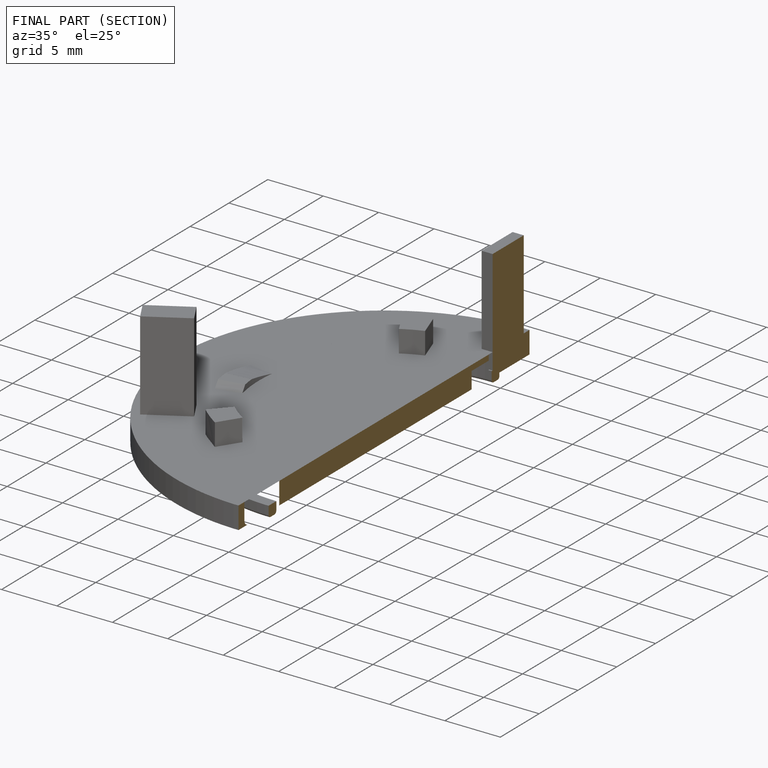
[diagram: finished part — half-section view (interior)]
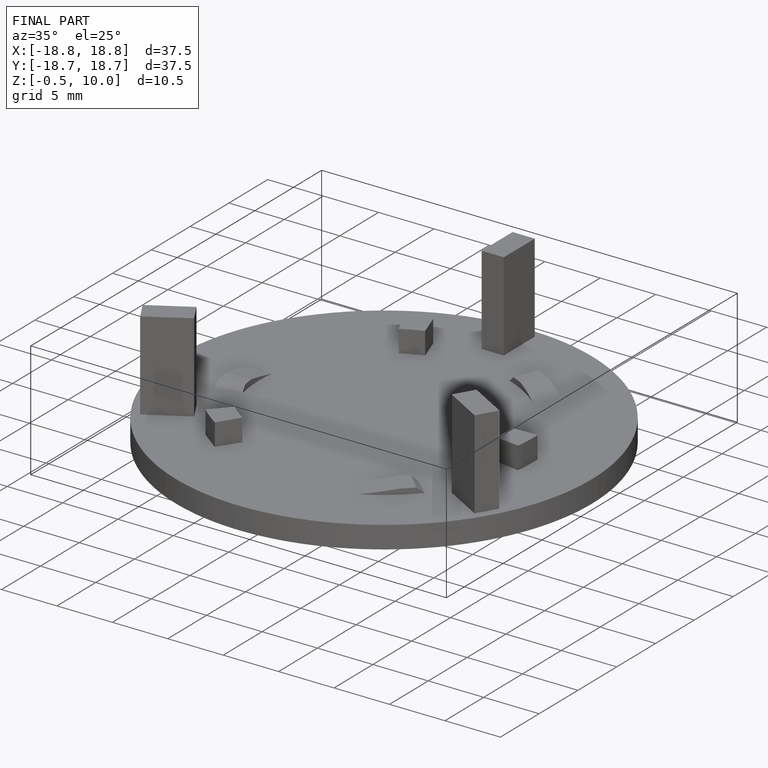
[diagram: finished part — iso view with bounding-box wireframe]
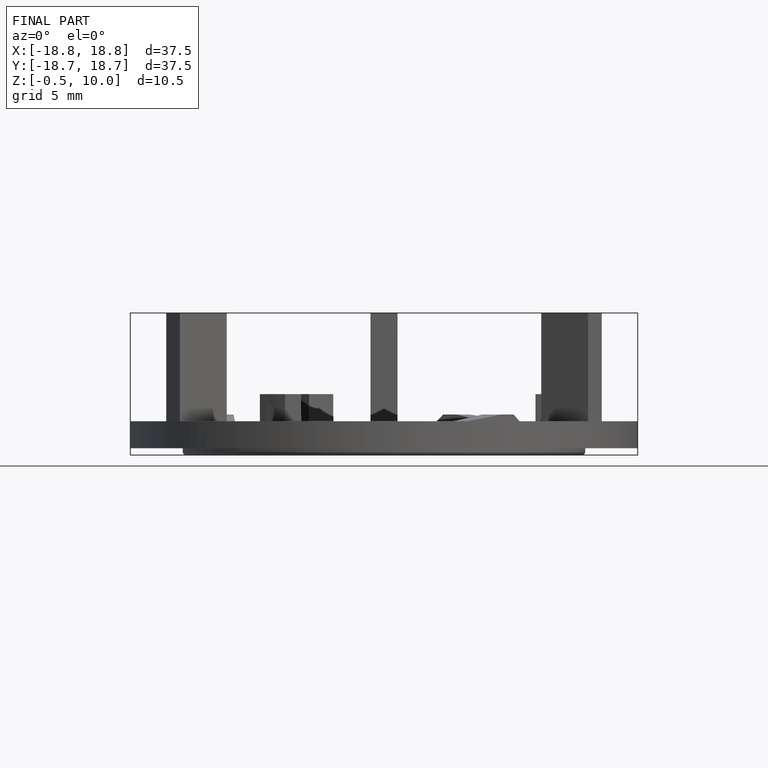
[diagram: finished part — front view with bounding-box wireframe]
